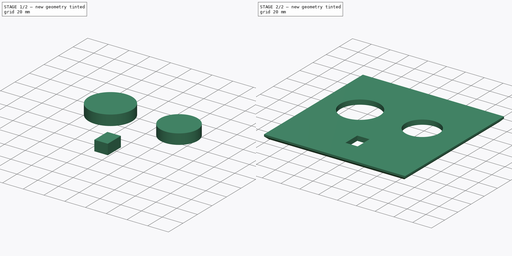
[diagram: build sequence overview — one tinted view per stage of 2, left to right]
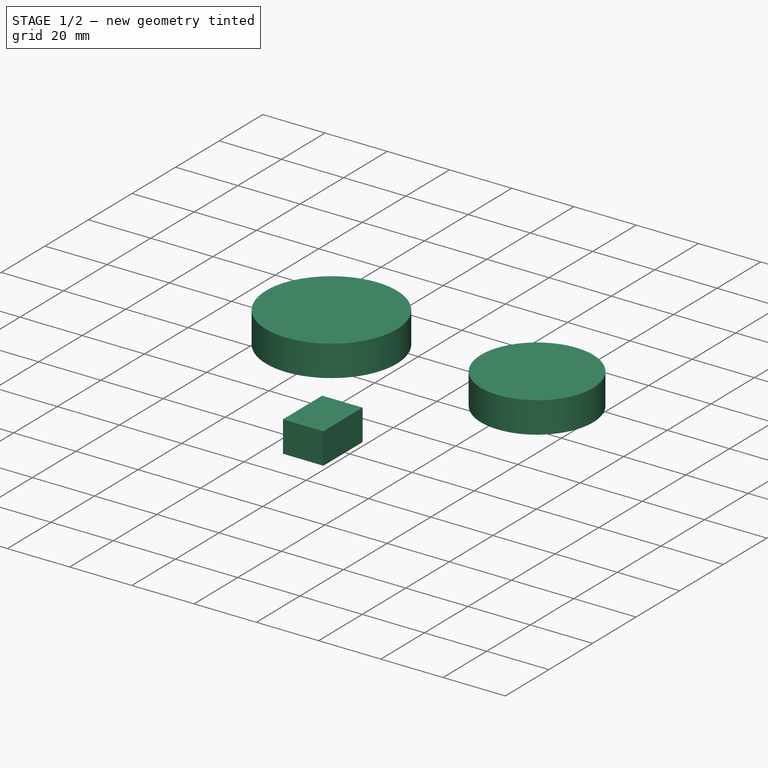
[diagram: stage 1 of 2 — iso view after this stage's code; geometry added in this stage tinted green]
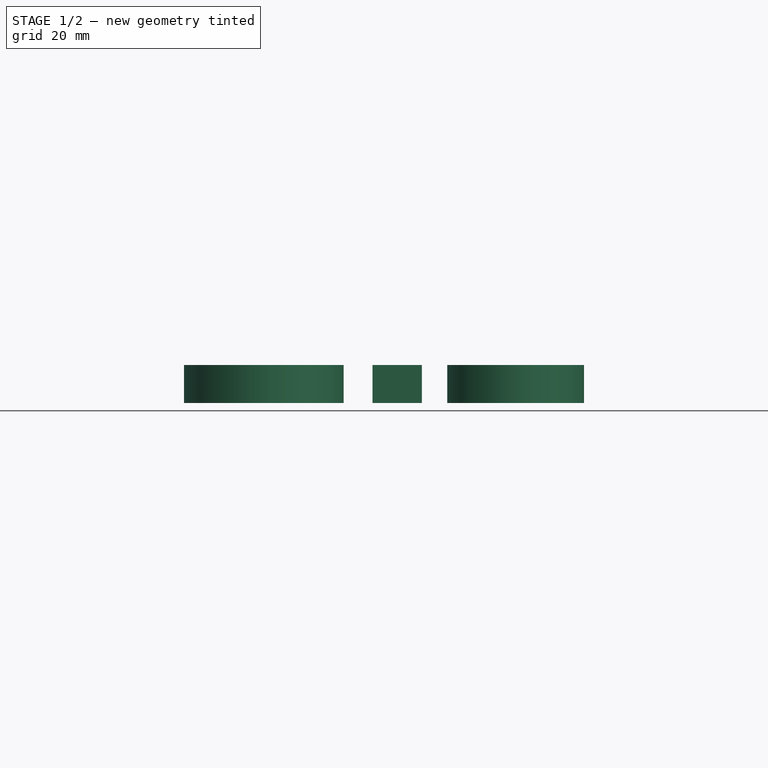
[diagram: stage 1 of 2 — front view after this stage's code; geometry added in this stage tinted green]
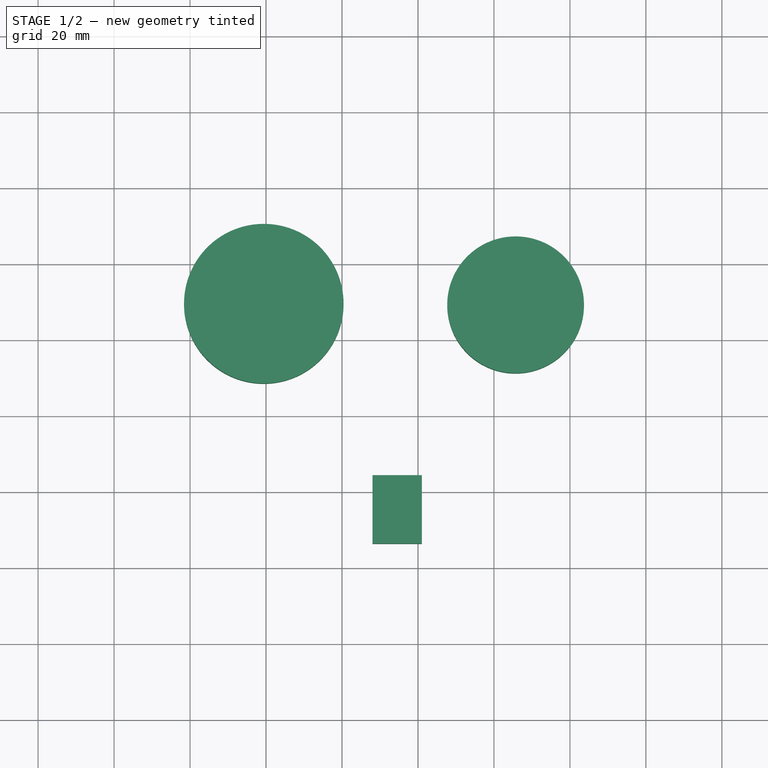
[diagram: stage 1 of 2 — top view after this stage's code; geometry added in this stage tinted green]
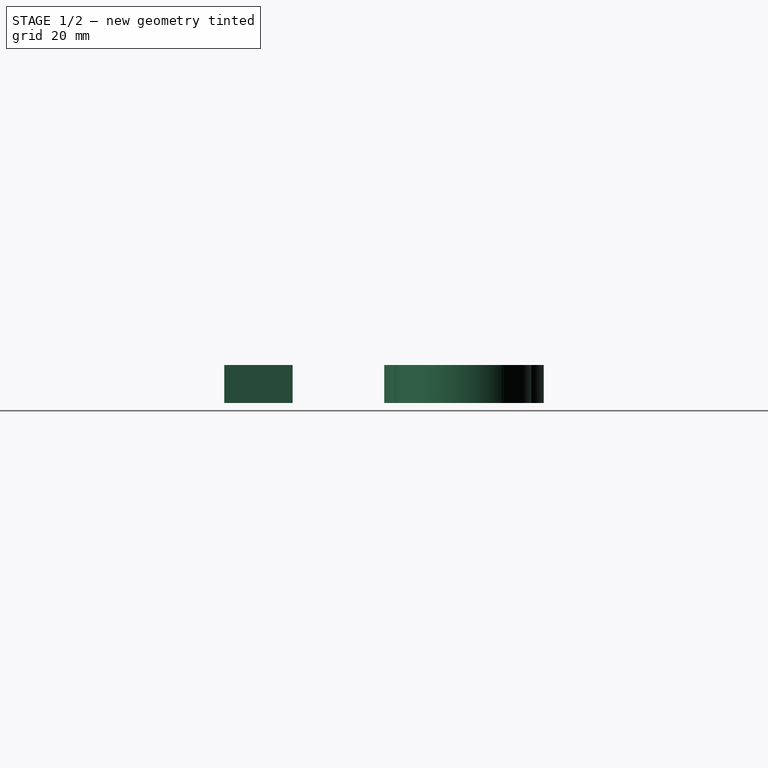
[diagram: stage 1 of 2 — right view after this stage's code; geometry added in this stage tinted green]
FCSTD DOCUMENT  (FreeCAD 0.17R13541 (Git))
Label: TapaCajaProyecto
License: All rights reserved
LicenseURL: http://en.wikipedia.org/wiki/All_rights_reserved
objects: Drawing::FeatureViewPart×2, Part::Box×1, Sketcher::SketchObject×1, Part::Extrusion×1, Part::Cut×1, Part::Chamfer×1, Drawing::FeaturePage×1
note: 5 computed .brp shape members not serialized (recipe doc carries the construction recipe); baked Part::Feature solids carry a one-line shape summary decoded from their .brp

FEATURE [Part::Box] Box002  label="TapaCaja"
  AttacherType = Attacher::AttachEngine3D
  Height = 5
  Length = 150
  Width = 150
FEATURE [Sketcher::SketchObject] Sketch002
  MapMode = 5
  Placement = pos=(0,0,5) rot=(0,0,1;0rad)
  Support = -> [Box002]
  sketch-geometry (6):
    g0: Circle CenterX=39.4132 CenterY=89.552 CenterZ=0 NormalX=0 NormalY=0 NormalZ=1 AngleXU=0 Radius=21
    g1: Circle CenterX=105.7 CenterY=89.2471 CenterZ=0 NormalX=0 NormalY=0 NormalZ=1 AngleXU=0 Radius=18
    g2: LineSegment StartX=68.0409 StartY=44.4102 StartZ=0 EndX=81.0409 EndY=44.4102 EndZ=0
    g3: LineSegment StartX=81.0409 StartY=44.4102 StartZ=0 EndX=81.0409 EndY=26.4102 EndZ=0
    g4: LineSegment StartX=81.0409 StartY=26.4102 StartZ=0 EndX=68.0409 EndY=26.4102 EndZ=0
    g5: LineSegment StartX=68.0409 StartY=26.4102 StartZ=0 EndX=68.0409 EndY=44.4102 EndZ=0
  constraints (12):
    c: Radius(g0) = 21
    c: Radius(g1) = 18
    c: Coincident(g2,g3)
    c: Coincident(g3,g4)
    c: Coincident(g4,g5)
    c: Coincident(g5,g2)
    c: Horizontal(g2)
    c: Horizontal(g4)
    c: Vertical(g3)
    c: Vertical(g5)
    c: DistanceX(g2,g2) = 13
    c: DistanceY(g3,g3) = 18
FEATURE [Part::Extrusion] Extrude002
  Base = -> Sketch002
  Dir = (0,0,1)
  DirMode = 2
  FaceMakerClass = Part::FaceMakerBullseye
  LengthFwd = 10
  LengthRev = 0
  Placement = pos=(0,0,-7) rot=(0,0,1;0rad)
  Solid = true
  Symmetric = false
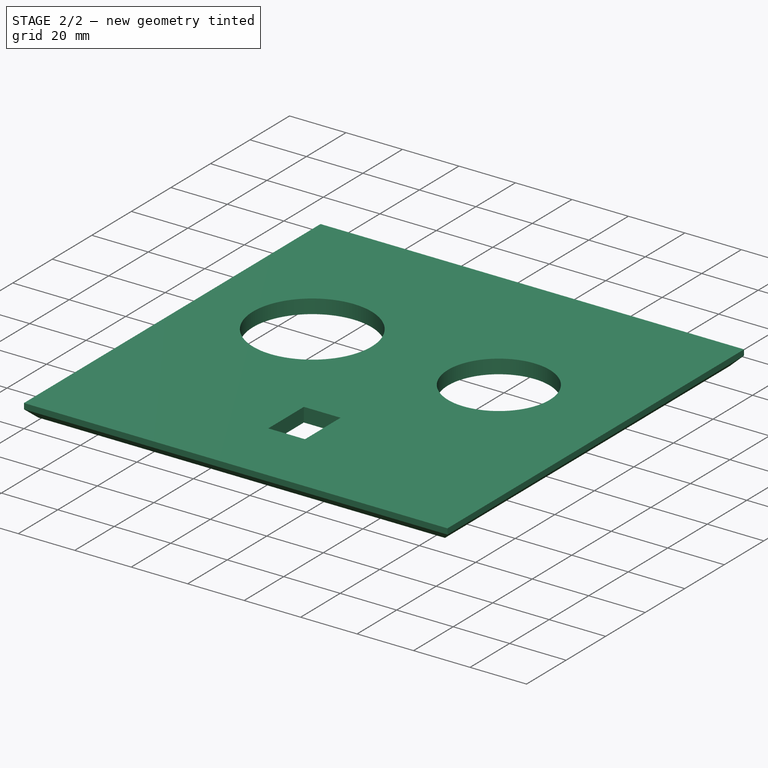
[diagram: stage 2 of 2 — iso view after this stage's code; geometry added in this stage tinted green]
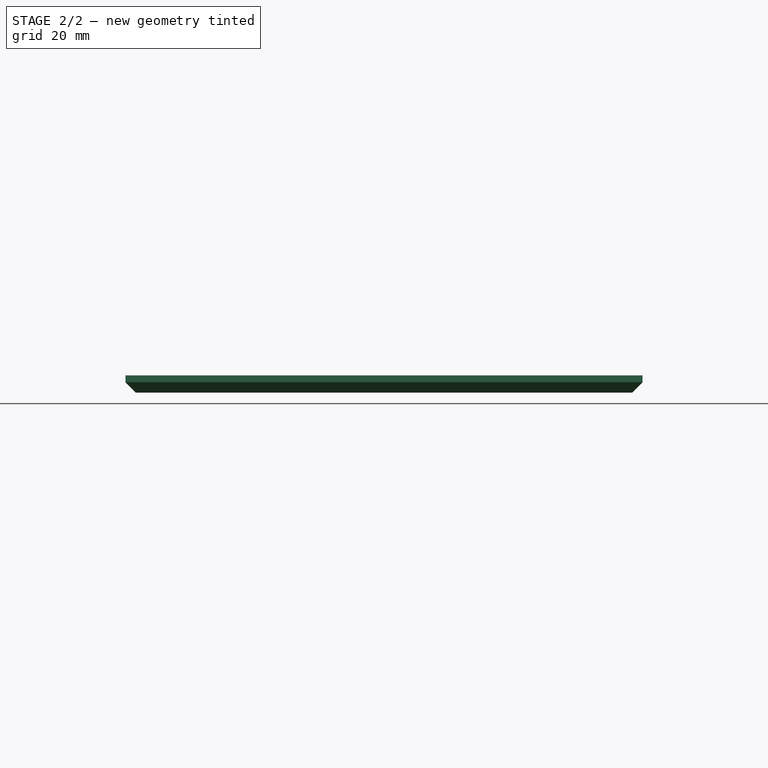
[diagram: stage 2 of 2 — front view after this stage's code; geometry added in this stage tinted green]
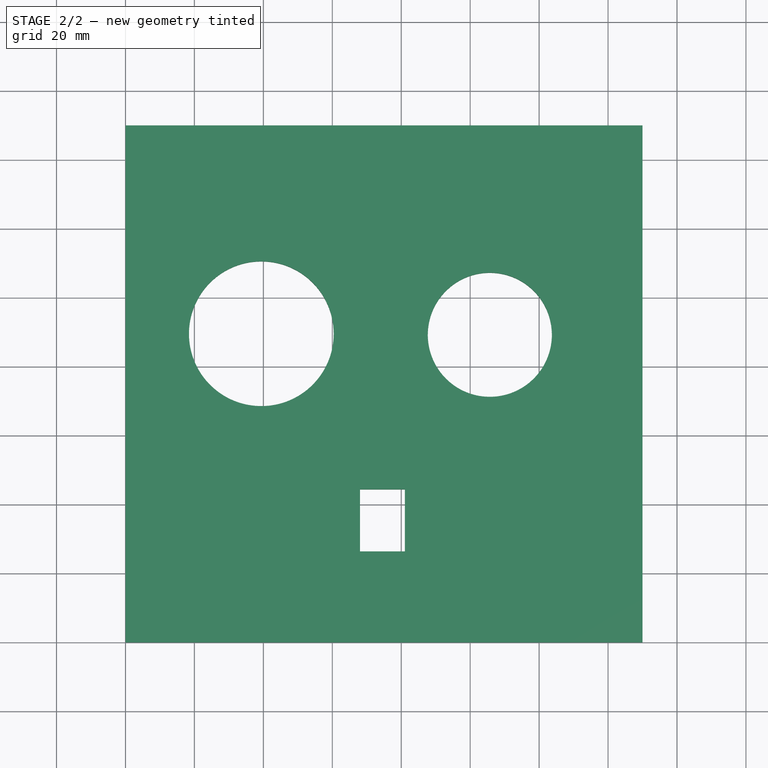
[diagram: stage 2 of 2 — top view after this stage's code; geometry added in this stage tinted green]
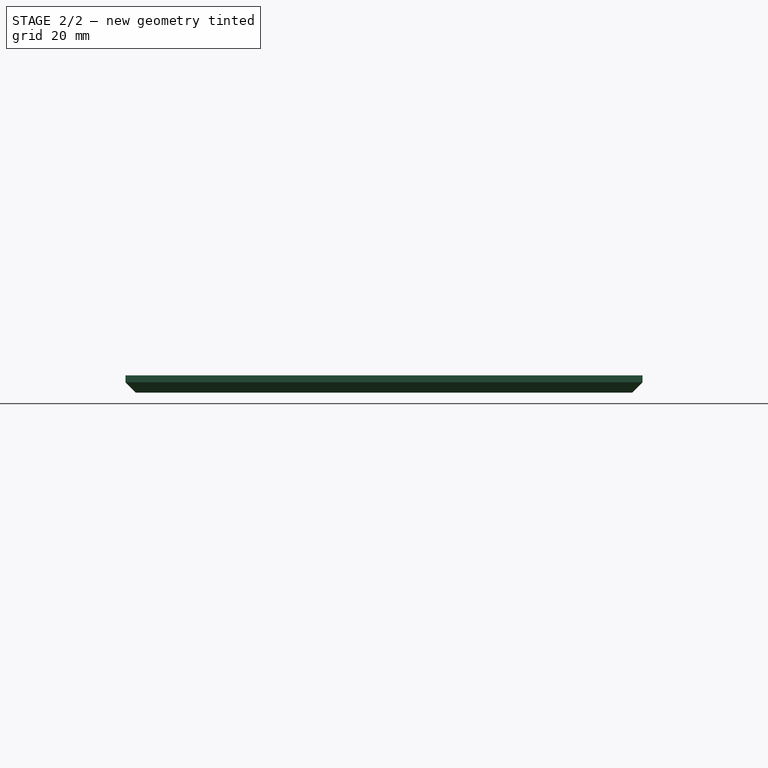
[diagram: stage 2 of 2 — right view after this stage's code; geometry added in this stage tinted green]
FEATURE [Part::Cut] Cut002  label="TapaCaja002"
  Base = -> Box002
  Placement = pos=(0,0,61) rot=(0,0,1;0rad)
  Tool = -> Extrude002
FEATURE [Part::Chamfer] Chamfer  label="TapaCaja003"
  Base = -> Cut002
  Edges = 4 edges r=3: [Edge4,Edge5,Edge16,Edge18]
  Placement = pos=(0,0,-4) rot=(0,0,1;0rad)
FEATURE [Drawing::FeatureViewPart] Ortho  label="Ortho_0_0"
  Direction = (1,0,0)
  HiddenWidth = 0.15
  LineWidth = 0.35
  Rotation = -90
  ShowHiddenLines = false
  ShowSmoothLines = false
  Source = -> Chamfer
  Tolerance = 0.05
  ViewResult = <g id="Ortho_0_0"\n   transform="rotate(-90,226.667,263.333) translate(226.667,263.333) scale(1,1)"\n  >\n<g   fill="none"\n   stroke="rgb(0, 0, 0)"\n   stroke-linecap="butt"\n   stroke-linejoin="miter"\n   stroke-width="0.350000"\n   transform="scale(1,-1)"\n  >\n<path id= "1" d=" M 60 0 L 62 0 " />\n<path id= "2" d=" M 62 0 L 62 -150 " />\n<path id= "3" d=" M 60 -150 L 62 -150 " />\n<path id= "4" d=" M 60 0 L 60 -150 " />\n<path id= "5" d=" M 60 1.77636e-014 L 57 -3 " />\n<path id= "6" d=" M 57 -3 L 57 -147 " />\n<path id= "7" d=" M 60 -150 L 57 -147 " />\n</g>\n</g>
  Visible = true
  X = 226.667
  Y = 263.333
FEATURE [Drawing::FeatureViewPart] Ortho001  label="Ortho_-1_1"
  Direction = (0.57735,-0.57735,0.57735)
  HiddenWidth = 0.15
  LineWidth = 0.35
  Rotation = 60
  ShowHiddenLines = false
  ShowSmoothLines = false
  Source = -> Chamfer
  Tolerance = 0.05
  ViewResult = <g id="Ortho_-1_1"\n   transform="rotate(60,12.2673,154.248) translate(12.2673,154.248) scale(1,1)"\n  >\n<g   fill="none"\n   stroke="rgb(0, 0, 0)"\n   stroke-linecap="butt"\n   stroke-linejoin="miter"\n   stroke-width="0.350000"\n   transform="scale(1,-1)"\n  >\n<path id= "1" d=" M -42.4264 24.4949 L -43.8406 25.3114 " />\n<path id= "2" d=" M -43.8406 25.3114 L -43.8406 147.786 " />\n<path id= "3" d=" M 63.6396 85.7321 L 62.2254 86.5486 " />\n<path id= "4" d=" M -42.4264 24.4949 L 63.6396 85.7321 " />\n<path id= "5" d=" M -43.8406 25.3114 L 62.2254 86.5486 " />\n<path id= "6" d=" M -43.8406 147.786 L 62.2254 209.023 " />\n<path id= "7" d=" M 62.2254 86.5486 L 62.2254 209.023 " />\n<path id= "8" d=" M 13.464 94.657 L 4.27157 89.3497 " />\n<path id= "9" d=" M 4.27157 89.3497 L 4.27157 74.6528 " />\n<path id= "10" d=" M 4.27157 74.6528 L 13.464 79.96 " />\n<path id= "11" d=" M 13.464 79.96 L 13.464 94.657 " />\n<path d="M-1.12203 123.094 A21 12.1244 -120 0 0 -26.4713 96.3341" />\n<path d="M-26.4713 96.3341 A21 12.1244 -120 0 0 -5.47128 132.707" />\n<path d="M-5.47128 132.707 A21 12.1244 -120 0 0 -1.12203 123.094" />\n<path d="M43.6287 148.682 A18 10.3923 -120 0 0 21.9008 125.745" />\n<path d="M21.9008 125.745 A18 10.3923 -120 0 0 39.9008 156.922" />\n<path d="M39.9008 156.922 A18 10.3923 -120 0 0 43.6287 148.682" />\n<path id= "18" d=" M 63.6396 208.207 L 62.2254 209.023 " />\n<path id= "19" d=" M 63.6396 85.7321 L 63.6396 208.207 " />\n<path id= "20" d=" M 13.464 90.5745 L 7.80711 87.3085 " />\n<path id= "21" d=" M 7.80711 87.3085 L 7.80711 76.694 " />\n<path d="M-24.5536 95.5731 A21 12.1244 -120 0 0 -3.85339 131.427" />\n<path d="M23.8439 125.028 A18 10.3923 -120 0 0 41.4933 155.598" />\n<path id= "24" d=" M 7.80711 87.3085 L 4.27157 89.3497 " />\n</g>\n</g>
  Visible = true
  X = 12.2673
  Y = 154.248
FEATURE [Drawing::FeaturePage] Page
  EditableTexts = AUTHOR NAME | CREATION DATE | SUPERVISOR NAME | CHECK DATE | SCALE | WEIGHT | NUMBER | SHEET | TITLE | SUBTITLE
  Group = -> [Ortho,Ortho001]
  Template = <path>
note: 1 file-system path scrubbed to <path> (originals preserved in the JSON sidecar)
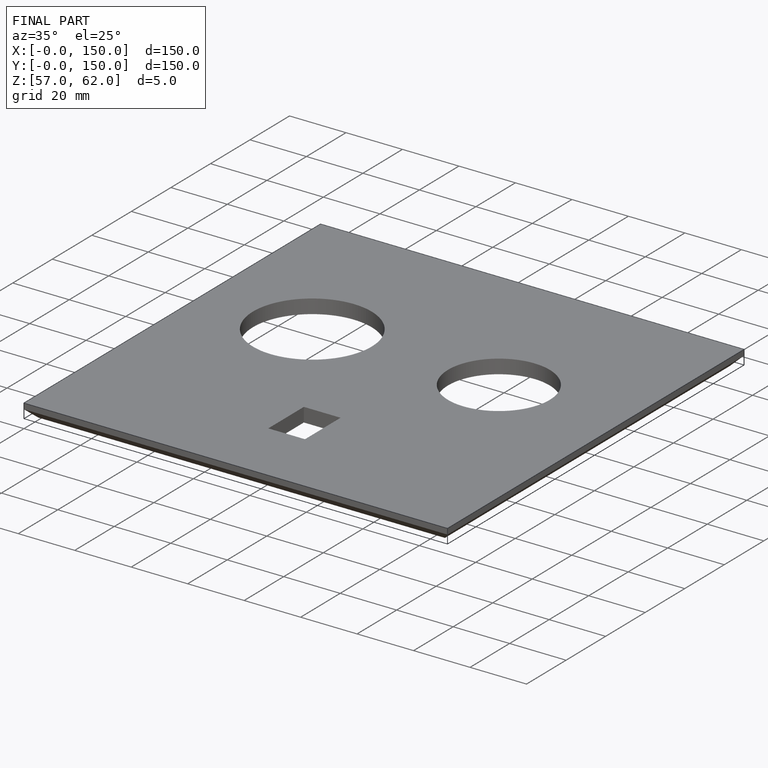
[diagram: finished part — iso view with bounding-box wireframe]
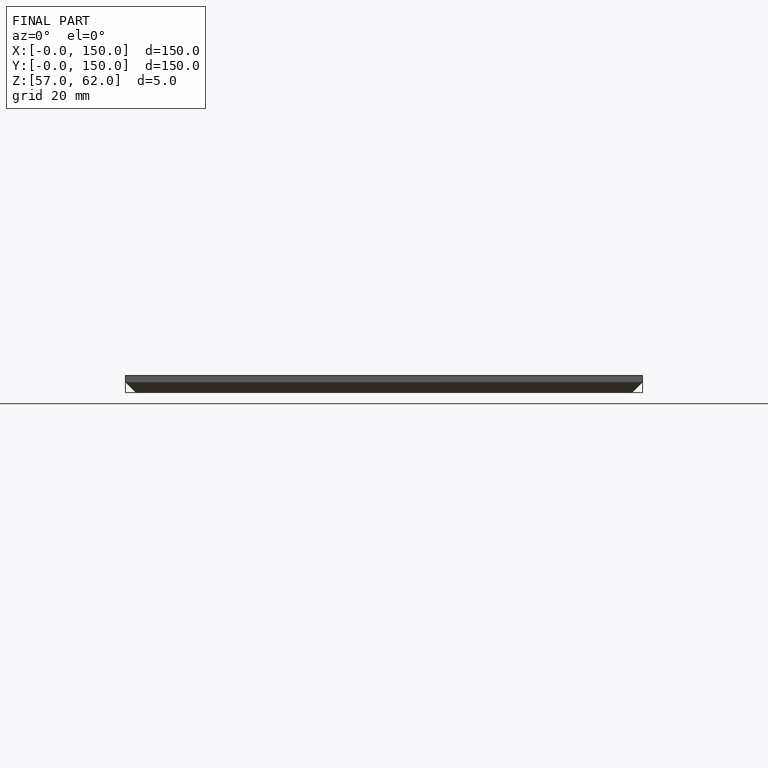
[diagram: finished part — front view with bounding-box wireframe]
